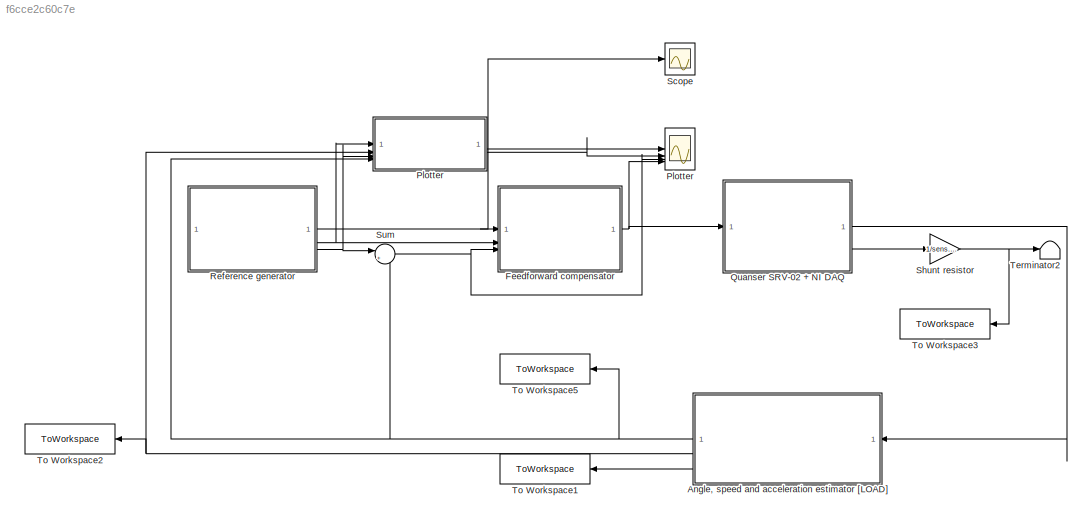
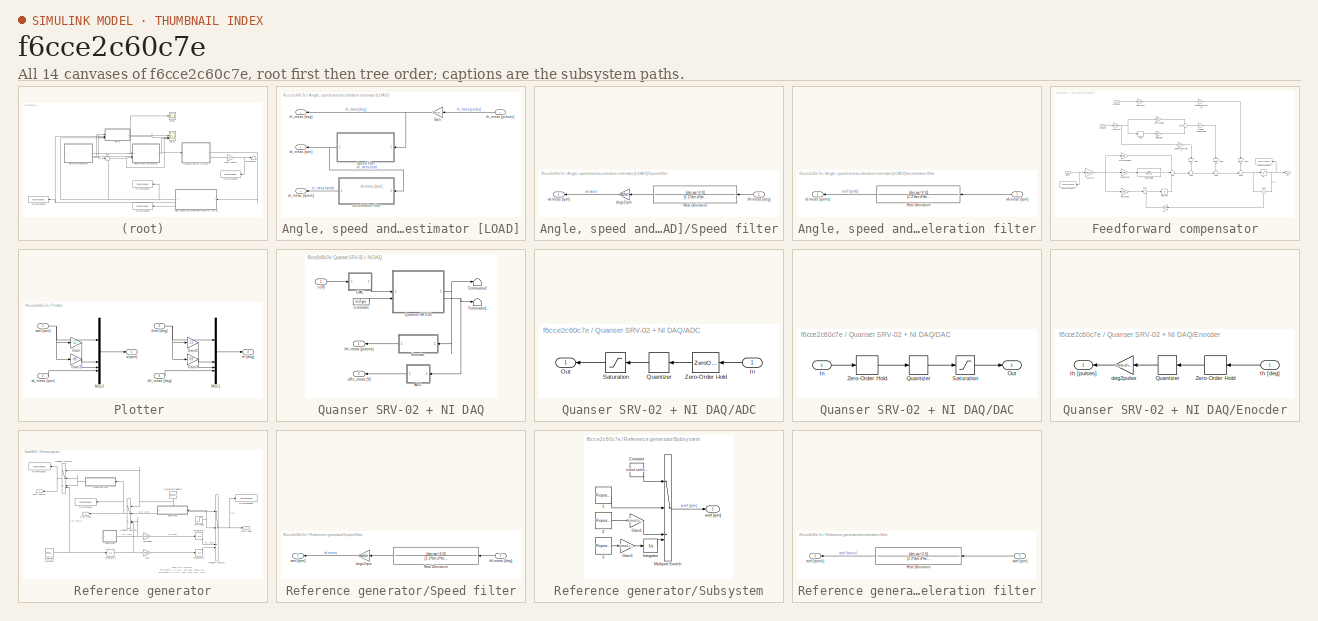
[diagram: thumbnail index - all 14 canvases of the model, root first then tree order]
MODEL slx_f6cce2c60c7e
KIND model
CONFIG AbsTol = auto
CONFIG EnableMultiTasking = off
CONFIG FixedStep = auto
CONFIG MaxStep = auto
CONFIG MinStep = auto
CONFIG RelTol = 1e-3
CONFIG SampleTimeConstraint = Unconstrained
CONFIG SolverName = ode45
CONFIG StartTime = 0.0
CONFIG StopTime = 10
BLOCK [SubSystem] Angle, speed and acceleration estimator [LOAD]
BLOCK [Gain] Angle, speed and acceleration estimator [LOAD]/Gain
  Gain = sens.enc.pulse2deg
  NameLocation = top
BLOCK [SubSystem] Angle, speed and acceleration estimator [LOAD]/Speed filter
  NameLocation = top
BLOCK [TransferFcn] Angle, speed and acceleration estimator [LOAD]/Speed filter/Real Derivative
  Denominator = [1 2*der.d*der.wc der.wc^2]
  NameLocation = top
  Numerator = [der.wc^2 0]
BLOCK [Gain] Angle, speed and acceleration estimator [LOAD]/Speed filter/degs2rpm
  Gain = degs2rpm
BLOCK [Inport] Angle, speed and acceleration estimator [LOAD]/Speed filter/thl-meas [deg]
BLOCK [Outport] Angle, speed and acceleration estimator [LOAD]/Speed filter/wl-meas [rpm]
BLOCK [SubSystem] Angle, speed and acceleration estimator [LOAD]/acceleration filter
BLOCK [TransferFcn] Angle, speed and acceleration estimator [LOAD]/acceleration filter/Real Derivative
  Denominator = [1 2*der.d*der.wc der.wc^2]
  NameLocation = top
  Numerator = [der.wc^2 0]
BLOCK [Outport] Angle, speed and acceleration estimator [LOAD]/acceleration filter/al-meas [rpm//s]
  NameLocation = top
BLOCK [Inport] Angle, speed and acceleration estimator [LOAD]/acceleration filter/wl-meas [rpm]
BLOCK [Outport] Angle, speed and acceleration estimator [LOAD]/al_meas [rpm//s]
  Port = 3
BLOCK [Outport] Angle, speed and acceleration estimator [LOAD]/th_meas [deg]
BLOCK [Inport] Angle, speed and acceleration estimator [LOAD]/th_meas [pulses]
  NameLocation = top
BLOCK [Outport] Angle, speed and acceleration estimator [LOAD]/wl_meas [rpm]
  Port = 2
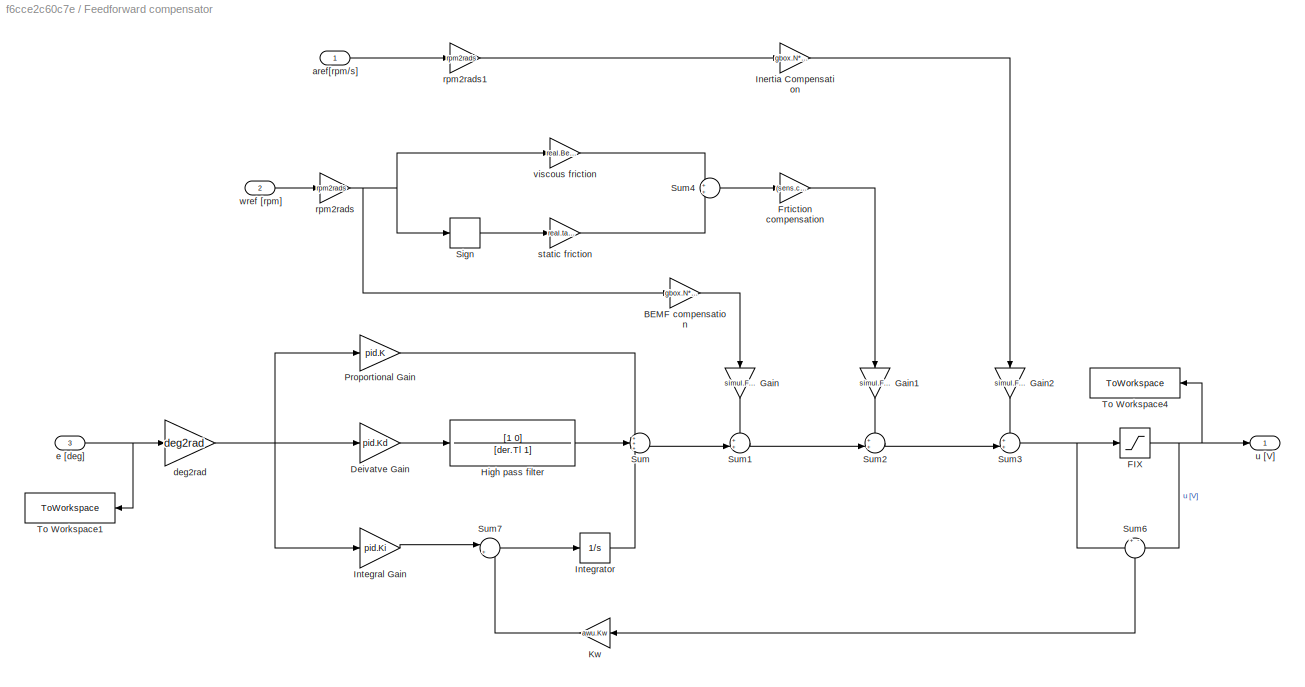
BLOCK [SubSystem] Feedforward compensator
BLOCK [Gain] Feedforward compensator/BEMF compensation
  Gain = gbox.N*mot.Ke/drv.dcgain
BLOCK [Gain] Feedforward compensator/Deivatve Gain
  Gain = pid.Kd
BLOCK [Saturate] Feedforward compensator/FIX 
  LowerLimit = -10
  UpperLimit = 10
BLOCK [Gain] Feedforward compensator/Frtiction compensation
  Gain = (sens.curr.Rs+mot.R)/(mot.Kt*drv.dcgain*gbox.N)
BLOCK [Gain] Feedforward compensator/Gain
  Gain = simul.FFW
  NameLocation = left
BLOCK [Gain] Feedforward compensator/Gain1
  Gain = simul.FFW
  NameLocation = left
BLOCK [Gain] Feedforward compensator/Gain2
  Gain = simul.FFW
  NameLocation = left
BLOCK [TransferFcn] Feedforward compensator/High pass filter
  Denominator = [der.Tl 1]
  Numerator = [1 0]
BLOCK [Gain] Feedforward compensator/Inertia Compensation
  Gain = gbox.N*(sens.curr.Rs+mot.R)*real.Jeq/(mot.Kt*drv.dcgain)
BLOCK [Gain] Feedforward compensator/Integral Gain
  Gain = pid.Ki
BLOCK [Integrator] Feedforward compensator/Integrator
BLOCK [Gain] Feedforward compensator/Kw
  Gain = awu.Kw
BLOCK [Gain] Feedforward compensator/Proportional Gain
  Gain = pid.K
BLOCK [Signum] Feedforward compensator/Sign
BLOCK [Sum] Feedforward compensator/Sum
  Inputs = +++
BLOCK [Sum] Feedforward compensator/Sum1
  Inputs = ++|
BLOCK [Sum] Feedforward compensator/Sum2
  Inputs = ++|
BLOCK [Sum] Feedforward compensator/Sum3
  Inputs = ++|
BLOCK [Sum] Feedforward compensator/Sum4
BLOCK [Sum] Feedforward compensator/Sum6
  Inputs = +-
  NameLocation = left
BLOCK [Sum] Feedforward compensator/Sum7
  Inputs = |+-
BLOCK [ToWorkspace] Feedforward compensator/To Workspace1
  FixptAsFi = on
  MaxDataPoints = inf
  NameLocation = top
  SampleTime = Ts
  SaveFormat = Structure With Time
  VariableName = e
BLOCK [ToWorkspace] Feedforward compensator/To Workspace4
  FixptAsFi = on
  MaxDataPoints = inf
  NameLocation = top
  SampleTime = Ts
  SaveFormat = Structure With Time
  VariableName = u
BLOCK [Inport] Feedforward compensator/aref[rpm//s]
BLOCK [Gain] Feedforward compensator/deg2rad
  Gain = deg2rad
BLOCK [Inport] Feedforward compensator/e [deg]
  Port = 3
BLOCK [Gain] Feedforward compensator/rpm2rads
  Gain = rpm2rads
BLOCK [Gain] Feedforward compensator/rpm2rads1
  Gain = rpm2rads
BLOCK [Gain] Feedforward compensator/static friction
  Gain = real.tausf
BLOCK [Outport] Feedforward compensator/u [V]
BLOCK [Gain] Feedforward compensator/viscous friction
  Gain = real.Beq*gbox.N^2
BLOCK [Inport] Feedforward compensator/wref [rpm]
  Port = 2
BLOCK [Scope] Plotter
  Floating = off
  NumInputPorts = 4
  ScopeSpecificationString = Simulink.scopes.TimeScopeBlockCfg('CurrentConfiguration', extmgr.ConfigurationSet(extmgr.Configuration('Core','General UI',true),extmgr.Configuration('Core','Source UI',true),extmgr.Configuration('Sources','WiredSimulink',true,'SampleTime','Ts'),extmgr.Configuration('Visuals','Time Domain',true,'SerializedDisplays',{struct('MinYLimReal','-618.75','MaxYLimReal','618.75','YLabelReal','','MinYLimMag'...<+4649ch>
BLOCK [SubSystem] Plotter 
BLOCK [Gain] Plotter /Gain
  Gain = 1.1
BLOCK [Gain] Plotter /Gain1
  Gain = 0.9
BLOCK [Gain] Plotter /Gain2
  Gain = 1.1
BLOCK [Gain] Plotter /Gain3
  Gain = 0.9
BLOCK [Mux] Plotter /Mux1
  DisplayOption = bar
BLOCK [Mux] Plotter /Mux2
  DisplayOption = bar
BLOCK [Outport] Plotter /th [deg]
  Port = 2
BLOCK [Inport] Plotter /thl_meas [deg]
  Port = 4
BLOCK [Inport] Plotter /thref [deg]
  Port = 3
BLOCK [Outport] Plotter /w [rpm]
BLOCK [Inport] Plotter /wl_meas [rpm]
  Port = 2
BLOCK [Inport] Plotter /wref [rpm]
BLOCK [SubSystem] Quanser SRV-02 + NI DAQ
BLOCK [SubSystem] Quanser SRV-02 + NI DAQ/ADC
BLOCK [Inport] Quanser SRV-02 + NI DAQ/ADC/In
BLOCK [Outport] Quanser SRV-02 + NI DAQ/ADC/Out
BLOCK [Quantizer] Quanser SRV-02 + NI DAQ/ADC/Quantizer
  QuantizationInterval = daq.adc.q
BLOCK [Saturate] Quanser SRV-02 + NI DAQ/ADC/Saturation
  LowerLimit = -daq.adc.fs
  UpperLimit = daq.adc.fs
BLOCK [ZeroOrderHold] Quanser SRV-02 + NI DAQ/ADC/Zero-Order Hold
  SampleTime = Ts
BLOCK [Constant] Quanser SRV-02 + NI DAQ/Constant
  Value = fricType
BLOCK [SubSystem] Quanser SRV-02 + NI DAQ/DAC
BLOCK [Inport] Quanser SRV-02 + NI DAQ/DAC/In
BLOCK [Outport] Quanser SRV-02 + NI DAQ/DAC/Out
BLOCK [Quantizer] Quanser SRV-02 + NI DAQ/DAC/Quantizer
  QuantizationInterval = daq.dac.q
BLOCK [Saturate] Quanser SRV-02 + NI DAQ/DAC/Saturation
  LowerLimit = -daq.dac.fs
  UpperLimit = daq.dac.fs
BLOCK [ZeroOrderHold] Quanser SRV-02 + NI DAQ/DAC/Zero-Order Hold
  SampleTime = Ts
BLOCK [SubSystem] Quanser SRV-02 + NI DAQ/Enocder
BLOCK [Quantizer] Quanser SRV-02 + NI DAQ/Enocder/Quantizer
  QuantizationInterval = sens.enc.pulse2deg
BLOCK [ZeroOrderHold] Quanser SRV-02 + NI DAQ/Enocder/Zero-Order Hold
  SampleTime = Ts
BLOCK [Gain] Quanser SRV-02 + NI DAQ/Enocder/deg2pulse
  Gain = sens.enc.deg2pulse
BLOCK [Inport] Quanser SRV-02 + NI DAQ/Enocder/th [deg]
BLOCK [Outport] Quanser SRV-02 + NI DAQ/Enocder/th [pulses]
BLOCK [ModelReference] Quanser SRV-02 + NI DAQ/Quanser SRV-02
  CopyOfModelProtected = on
  ModelNameDialog = SRV02IL_win64.slxp
  ModelReferenceVersion = 1.44
BLOCK [Terminator] Quanser SRV-02 + NI DAQ/Terminator1
BLOCK [Terminator] Quanser SRV-02 + NI DAQ/Terminator2
BLOCK [Outport] Quanser SRV-02 + NI DAQ/thl_meas [pulses]
BLOCK [Inport] Quanser SRV-02 + NI DAQ/u [V]
BLOCK [Outport] Quanser SRV-02 + NI DAQ/uRs_meas [V]
  Port = 2
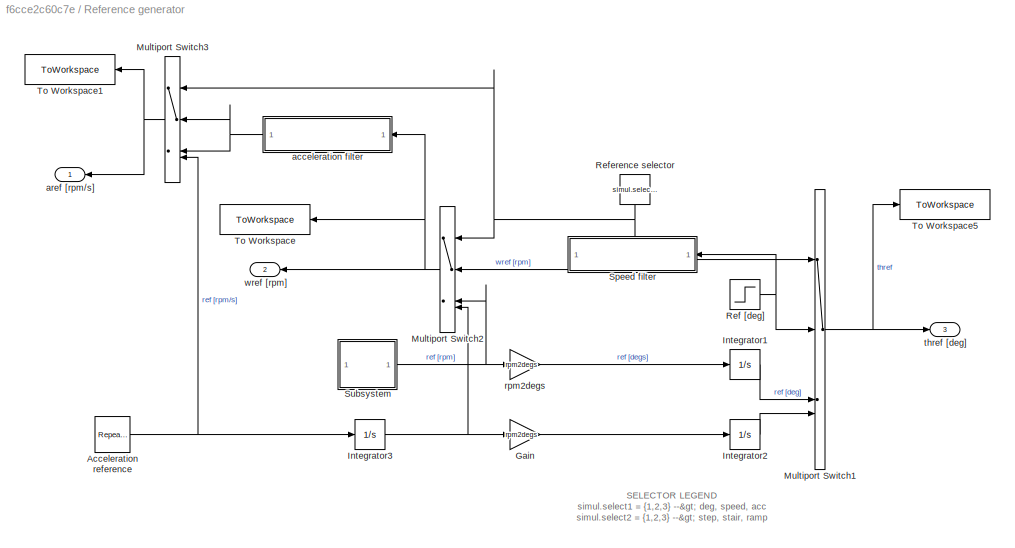
BLOCK [SubSystem] Reference generator
  NameLocation = top
BLOCK [Reference] Reference generator/Acceleration reference  REF=simulink/Sources/Repeating
Sequence
Stair
  SourceBlock = simulink/Sources/Repeating\nSequence\nStair
  SourceType = Repeating Sequence Stair
BLOCK [Gain] Reference generator/Gain
  Gain = rpm2degs
BLOCK [Integrator] Reference generator/Integrator1
BLOCK [Integrator] Reference generator/Integrator2
BLOCK [Integrator] Reference generator/Integrator3
BLOCK [MultiPortSwitch] Reference generator/Multiport Switch1
  InputSameDT = off
  SaturateOnIntegerOverflow = off
BLOCK [MultiPortSwitch] Reference generator/Multiport Switch2
  InputSameDT = off
  NameLocation = top
  SaturateOnIntegerOverflow = off
BLOCK [MultiPortSwitch] Reference generator/Multiport Switch3
  InputSameDT = off
  NameLocation = top
  SaturateOnIntegerOverflow = off
BLOCK [Step] Reference generator/Ref [deg]
  After = simul.stepdeg
BLOCK [Constant] Reference generator/Reference selector
  NameLocation = left
  Value = simul.select1
BLOCK [SubSystem] Reference generator/Speed filter
BLOCK [TransferFcn] Reference generator/Speed filter/Real Derivative
  Denominator = [1 2*der.d*der.wc der.wc^2]
  NameLocation = top
  Numerator = [der.wc^2 0]
BLOCK [Gain] Reference generator/Speed filter/degs2rpm
  Gain = degs2rpm
BLOCK [Inport] Reference generator/Speed filter/thl-meas [deg]
BLOCK [Outport] Reference generator/Speed filter/wref [rpm]
BLOCK [SubSystem] Reference generator/Subsystem
BLOCK [Reference] Reference generator/Subsystem/1  REF=simulink/Sources/Repeating
Sequence
Stair
  SourceBlock = simulink/Sources/Repeating\nSequence\nStair
  SourceType = Repeating Sequence Stair
BLOCK [Reference] Reference generator/Subsystem/2  REF=simulink/Sources/Repeating
Sequence
Stair
  SourceBlock = simulink/Sources/Repeating\nSequence\nStair
  SourceType = Repeating Sequence Stair
BLOCK [Reference] Reference generator/Subsystem/3  REF=simulink/Sources/Repeating
Sequence
Stair
  SourceBlock = simulink/Sources/Repeating\nSequence\nStair
  SourceType = Repeating Sequence Stair
BLOCK [Constant] Reference generator/Subsystem/Constant
  Value = simul.select2
BLOCK [Gain] Reference generator/Subsystem/Gain1
  Gain = simul.stair_gain
BLOCK [Gain] Reference generator/Subsystem/Gain3
  Gain = simul.ramp_gain
BLOCK [Integrator] Reference generator/Subsystem/Integrator
BLOCK [MultiPortSwitch] Reference generator/Subsystem/Multiport Switch
  InputSameDT = off
  SaturateOnIntegerOverflow = off
BLOCK [Outport] Reference generator/Subsystem/wref [rpm]
BLOCK [ToWorkspace] Reference generator/To Workspace
  FixptAsFi = on
  MaxDataPoints = inf
  NameLocation = top
  SampleTime = Ts
  SaveFormat = Structure With Time
  VariableName = wref
BLOCK [ToWorkspace] Reference generator/To Workspace1
  FixptAsFi = on
  MaxDataPoints = inf
  SampleTime = Ts
  SaveFormat = Structure With Time
  VariableName = aref
BLOCK [ToWorkspace] Reference generator/To Workspace5
  FixptAsFi = on
  MaxDataPoints = inf
  SampleTime = Ts
  SaveFormat = Structure With Time
  VariableName = thref
BLOCK [SubSystem] Reference generator/acceleration filter
BLOCK [TransferFcn] Reference generator/acceleration filter/Real Derivative
  Denominator = [1 2*der.d*der.wc der.wc^2]
  NameLocation = top
  Numerator = [der.wc^2 0]
BLOCK [Outport] Reference generator/acceleration filter/aref [rpm//s]
  NameLocation = top
BLOCK [Inport] Reference generator/acceleration filter/wref [rpm]
BLOCK [Outport] Reference generator/aref [rpm//s]
  NameLocation = top
BLOCK [Gain] Reference generator/rpm2degs
  Gain = rpm2degs
BLOCK [Outport] Reference generator/thref [deg]
  Port = 3
BLOCK [Outport] Reference generator/wref [rpm]
  NameLocation = top
  Port = 2
BLOCK [Scope] Scope
  Floating = off
  NumInputPorts = 1
  ScopeSpecificationString = Simulink.scopes.TimeScopeBlockCfg('CurrentConfiguration', extmgr.ConfigurationSet(extmgr.Configuration('Core','General UI',true),extmgr.Configuration('Core','Source UI',true),extmgr.Configuration('Sources','WiredSimulink',true,'DataLoggingVariableName','ScopeData1'),extmgr.Configuration('Visuals','Time Domain',true),extmgr.Configuration('Tools','Plot Navigation',true),extmgr.Configuration('Tools',...<+58ch>
BLOCK [Gain] Shunt resistor
  Gain = 1/sens.curr.Rs
BLOCK [Sum] Sum
  Inputs = |+-
BLOCK [Terminator] Terminator2
BLOCK [ToWorkspace] To Workspace1
  FixptAsFi = on
  MaxDataPoints = inf
  NameLocation = top
  SampleTime = Ts
  SaveFormat = Structure With Time
  VariableName = al_meas
BLOCK [ToWorkspace] To Workspace2
  FixptAsFi = on
  MaxDataPoints = inf
  NameLocation = top
  SampleTime = Ts
  SaveFormat = Structure With Time
  VariableName = wl_meas
BLOCK [ToWorkspace] To Workspace3
  FixptAsFi = on
  MaxDataPoints = inf
  NameLocation = top
  SampleTime = Ts
  SaveFormat = Structure With Time
  VariableName = ia
BLOCK [ToWorkspace] To Workspace5
  FixptAsFi = on
  MaxDataPoints = inf
  SampleTime = Ts
  SaveFormat = Structure With Time
  VariableName = thl_meas
ANNOTATION Angle, speed and acceleration estimator [LOAD]: wl-meas [rpm]
ANNOTATION Reference generator: SELECTOR LEGEND simul.select1 = {1,2,3} --> deg, speed, acc simul.select2 = {1,2,3} --> step, stair, ramp
NET Angle, speed and acceleration estimator [LOAD]/Gain:1 -> Angle, speed and acceleration estimator [LOAD]/Speed filter:1, Angle, speed and acceleration estimator [LOAD]/th_meas [deg]:1
LINE Angle, speed and acceleration estimator [LOAD]/Speed filter/Real Derivative:1 -> Angle, speed and acceleration estimator [LOAD]/Speed filter/degs2rpm:1
LINE Angle, speed and acceleration estimator [LOAD]/Speed filter/degs2rpm:1 -> Angle, speed and acceleration estimator [LOAD]/Speed filter/wl-meas [rpm]:1
LINE Angle, speed and acceleration estimator [LOAD]/Speed filter/thl-meas [deg]:1 -> Angle, speed and acceleration estimator [LOAD]/Speed filter/Real Derivative:1
NET Angle, speed and acceleration estimator [LOAD]/Speed filter:1 -> Angle, speed and acceleration estimator [LOAD]/acceleration filter:1, Angle, speed and acceleration estimator [LOAD]/wl_meas [rpm]:1
LINE Angle, speed and acceleration estimator [LOAD]/acceleration filter/Real Derivative:1 -> Angle, speed and acceleration estimator [LOAD]/acceleration filter/al-meas [rpm//s]:1
LINE Angle, speed and acceleration estimator [LOAD]/acceleration filter/wl-meas [rpm]:1 -> Angle, speed and acceleration estimator [LOAD]/acceleration filter/Real Derivative:1
LINE Angle, speed and acceleration estimator [LOAD]/acceleration filter:1 -> Angle, speed and acceleration estimator [LOAD]/al_meas [rpm//s]:1
LINE Angle, speed and acceleration estimator [LOAD]/th_meas [pulses]:1 -> Angle, speed and acceleration estimator [LOAD]/Gain:1
NET Angle, speed and acceleration estimator [LOAD]:1 -> Plotter :4, Sum:2, To Workspace5:1
NET Angle, speed and acceleration estimator [LOAD]:2 -> Plotter :2, To Workspace2:1
LINE Angle, speed and acceleration estimator [LOAD]:3 -> To Workspace1:1
LINE Feedforward compensator/BEMF compensation:1 -> Feedforward compensator/Gain:1
LINE Feedforward compensator/Deivatve Gain:1 -> Feedforward compensator/High pass filter:1
NET Feedforward compensator/FIX :1 -> Feedforward compensator/Sum6:2, Feedforward compensator/To Workspace4:1, Feedforward compensator/u [V]:1
LINE Feedforward compensator/Frtiction compensation:1 -> Feedforward compensator/Gain1:1
LINE Feedforward compensator/Gain1:1 -> Feedforward compensator/Sum2:1
LINE Feedforward compensator/Gain2:1 -> Feedforward compensator/Sum3:1
LINE Feedforward compensator/Gain:1 -> Feedforward compensator/Sum1:1
LINE Feedforward compensator/High pass filter:1 -> Feedforward compensator/Sum:2
LINE Feedforward compensator/Inertia Compensation:1 -> Feedforward compensator/Gain2:1
LINE Feedforward compensator/Integral Gain:1 -> Feedforward compensator/Sum7:1
LINE Feedforward compensator/Integrator:1 -> Feedforward compensator/Sum:3
LINE Feedforward compensator/Kw:1 -> Feedforward compensator/Sum7:2
LINE Feedforward compensator/Proportional Gain:1 -> Feedforward compensator/Sum:1
LINE Feedforward compensator/Sign:1 -> Feedforward compensator/static friction:1
LINE Feedforward compensator/Sum1:1 -> Feedforward compensator/Sum2:2
LINE Feedforward compensator/Sum2:1 -> Feedforward compensator/Sum3:2
NET Feedforward compensator/Sum3:1 -> Feedforward compensator/FIX :1, Feedforward compensator/Sum6:1
LINE Feedforward compensator/Sum4:1 -> Feedforward compensator/Frtiction compensation:1
LINE Feedforward compensator/Sum6:1 -> Feedforward compensator/Kw:1
LINE Feedforward compensator/Sum7:1 -> Feedforward compensator/Integrator:1
LINE Feedforward compensator/Sum:1 -> Feedforward compensator/Sum1:2
LINE Feedforward compensator/aref[rpm//s]:1 -> Feedforward compensator/rpm2rads1:1
NET Feedforward compensator/deg2rad:1 -> Feedforward compensator/Deivatve Gain:1, Feedforward compensator/Integral Gain:1, Feedforward compensator/Proportional Gain:1
NET Feedforward compensator/e [deg]:1 -> Feedforward compensator/To Workspace1:1, Feedforward compensator/deg2rad:1
LINE Feedforward compensator/rpm2rads1:1 -> Feedforward compensator/Inertia Compensation:1
NET Feedforward compensator/rpm2rads:1 -> Feedforward compensator/BEMF compensation:1, Feedforward compensator/Sign:1, Feedforward compensator/viscous friction:1
LINE Feedforward compensator/static friction:1 -> Feedforward compensator/Sum4:2
LINE Feedforward compensator/viscous friction:1 -> Feedforward compensator/Sum4:1
LINE Feedforward compensator/wref [rpm]:1 -> Feedforward compensator/rpm2rads:1
NET Feedforward compensator:1 -> Plotter:4, Quanser SRV-02 + NI DAQ:1
LINE Plotter /Gain1:1 -> Plotter /Mux2:3
LINE Plotter /Gain2:1 -> Plotter /Mux1:2
LINE Plotter /Gain3:1 -> Plotter /Mux1:3
LINE Plotter /Gain:1 -> Plotter /Mux2:2
LINE Plotter /Mux1:1 -> Plotter /th [deg]:1
LINE Plotter /Mux2:1 -> Plotter /w [rpm]:1
LINE Plotter /thl_meas [deg]:1 -> Plotter /Mux1:4
NET Plotter /thref [deg]:1 -> Plotter /Gain2:1, Plotter /Gain3:1, Plotter /Mux1:1
LINE Plotter /wl_meas [rpm]:1 -> Plotter /Mux2:4
NET Plotter /wref [rpm]:1 -> Plotter /Gain1:1, Plotter /Gain:1, Plotter /Mux2:1
LINE Plotter :1 -> Plotter:1
LINE Plotter :2 -> Plotter:2
LINE Quanser SRV-02 + NI DAQ/ADC/In:1 -> Quanser SRV-02 + NI DAQ/ADC/Zero-Order Hold:1
LINE Quanser SRV-02 + NI DAQ/ADC/Quantizer:1 -> Quanser SRV-02 + NI DAQ/ADC/Saturation:1
LINE Quanser SRV-02 + NI DAQ/ADC/Saturation:1 -> Quanser SRV-02 + NI DAQ/ADC/Out:1
LINE Quanser SRV-02 + NI DAQ/ADC/Zero-Order Hold:1 -> Quanser SRV-02 + NI DAQ/ADC/Quantizer:1
LINE Quanser SRV-02 + NI DAQ/ADC:1 -> Quanser SRV-02 + NI DAQ/uRs_meas [V]:1
LINE Quanser SRV-02 + NI DAQ/Constant:1 -> Quanser SRV-02 + NI DAQ/Quanser SRV-02:2
LINE Quanser SRV-02 + NI DAQ/DAC/In:1 -> Quanser SRV-02 + NI DAQ/DAC/Zero-Order Hold:1
LINE Quanser SRV-02 + NI DAQ/DAC/Quantizer:1 -> Quanser SRV-02 + NI DAQ/DAC/Saturation:1
LINE Quanser SRV-02 + NI DAQ/DAC/Saturation:1 -> Quanser SRV-02 + NI DAQ/DAC/Out:1
LINE Quanser SRV-02 + NI DAQ/DAC/Zero-Order Hold:1 -> Quanser SRV-02 + NI DAQ/DAC/Quantizer:1
LINE Quanser SRV-02 + NI DAQ/DAC:1 -> Quanser SRV-02 + NI DAQ/Quanser SRV-02:1
LINE Quanser SRV-02 + NI DAQ/Enocder/Quantizer:1 -> Quanser SRV-02 + NI DAQ/Enocder/deg2pulse:1
LINE Quanser SRV-02 + NI DAQ/Enocder/Zero-Order Hold:1 -> Quanser SRV-02 + NI DAQ/Enocder/Quantizer:1
LINE Quanser SRV-02 + NI DAQ/Enocder/deg2pulse:1 -> Quanser SRV-02 + NI DAQ/Enocder/th [pulses]:1
LINE Quanser SRV-02 + NI DAQ/Enocder/th [deg]:1 -> Quanser SRV-02 + NI DAQ/Enocder/Zero-Order Hold:1
LINE Quanser SRV-02 + NI DAQ/Enocder:1 -> Quanser SRV-02 + NI DAQ/thl_meas [pulses]:1
NET Quanser SRV-02 + NI DAQ/Quanser SRV-02:1 -> Quanser SRV-02 + NI DAQ/Enocder:1, Quanser SRV-02 + NI DAQ/Terminator2:1
NET Quanser SRV-02 + NI DAQ/Quanser SRV-02:2 -> Quanser SRV-02 + NI DAQ/ADC:1, Quanser SRV-02 + NI DAQ/Terminator1:1
LINE Quanser SRV-02 + NI DAQ/u [V]:1 -> Quanser SRV-02 + NI DAQ/DAC:1
LINE Quanser SRV-02 + NI DAQ:1 -> Angle, speed and acceleration estimator [LOAD]:1
LINE Quanser SRV-02 + NI DAQ:2 -> Shunt resistor:1
NET Reference generator/Acceleration reference:1 -> Reference generator/Integrator3:1, Reference generator/Multiport Switch3:4
LINE Reference generator/Gain:1 -> Reference generator/Integrator2:1
LINE Reference generator/Integrator1:1 -> Reference generator/Multiport Switch1:3
LINE Reference generator/Integrator2:1 -> Reference generator/Multiport Switch1:4
NET Reference generator/Integrator3:1 -> Reference generator/Gain:1, Reference generator/Multiport Switch2:4
NET Reference generator/Multiport Switch1:1 -> Reference generator/To Workspace5:1, Reference generator/thref [deg]:1
NET Reference generator/Multiport Switch2:1 -> Reference generator/To Workspace:1, Reference generator/acceleration filter:1, Reference generator/wref [rpm]:1
NET Reference generator/Multiport Switch3:1 -> Reference generator/To Workspace1:1, Reference generator/aref [rpm//s]:1
NET Reference generator/Ref [deg]:1 -> Reference generator/Multiport Switch1:2, Reference generator/Speed filter:1
NET Reference generator/Reference selector:1 -> Reference generator/Multiport Switch1:1, Reference generator/Multiport Switch2:1, Reference generator/Multiport Switch3:1
LINE Reference generator/Speed filter/Real Derivative:1 -> Reference generator/Speed filter/degs2rpm:1
LINE Reference generator/Speed filter/degs2rpm:1 -> Reference generator/Speed filter/wref [rpm]:1
LINE Reference generator/Speed filter/thl-meas [deg]:1 -> Reference generator/Speed filter/Real Derivative:1
LINE Reference generator/Speed filter:1 -> Reference generator/Multiport Switch2:2
LINE Reference generator/Subsystem/1:1 -> Reference generator/Subsystem/Multiport Switch:2
LINE Reference generator/Subsystem/2:1 -> Reference generator/Subsystem/Gain1:1
LINE Reference generator/Subsystem/3:1 -> Reference generator/Subsystem/Gain3:1
LINE Reference generator/Subsystem/Constant:1 -> Reference generator/Subsystem/Multiport Switch:1
LINE Reference generator/Subsystem/Gain1:1 -> Reference generator/Subsystem/Multiport Switch:3
LINE Reference generator/Subsystem/Gain3:1 -> Reference generator/Subsystem/Integrator:1
LINE Reference generator/Subsystem/Integrator:1 -> Reference generator/Subsystem/Multiport Switch:4
LINE Reference generator/Subsystem/Multiport Switch:1 -> Reference generator/Subsystem/wref [rpm]:1
NET Reference generator/Subsystem:1 -> Reference generator/Multiport Switch2:3, Reference generator/rpm2degs:1
LINE Reference generator/acceleration filter/Real Derivative:1 -> Reference generator/acceleration filter/aref [rpm//s]:1
LINE Reference generator/acceleration filter/wref [rpm]:1 -> Reference generator/acceleration filter/Real Derivative:1
NET Reference generator/acceleration filter:1 -> Reference generator/Multiport Switch3:2, Reference generator/Multiport Switch3:3
LINE Reference generator/rpm2degs:1 -> Reference generator/Integrator1:1
NET Reference generator:1 -> Feedforward compensator:1, Scope:1
NET Reference generator:2 -> Feedforward compensator:2, Plotter :1
NET Reference generator:3 -> Plotter :3, Sum:1
NET Shunt resistor:1 -> Terminator2:1, To Workspace3:1
NET Sum:1 -> Feedforward compensator:3, Plotter:3
note: NET lines group one-source signal fan-out (src -> all destinations, sorted); 1:1 wires keep LINE
